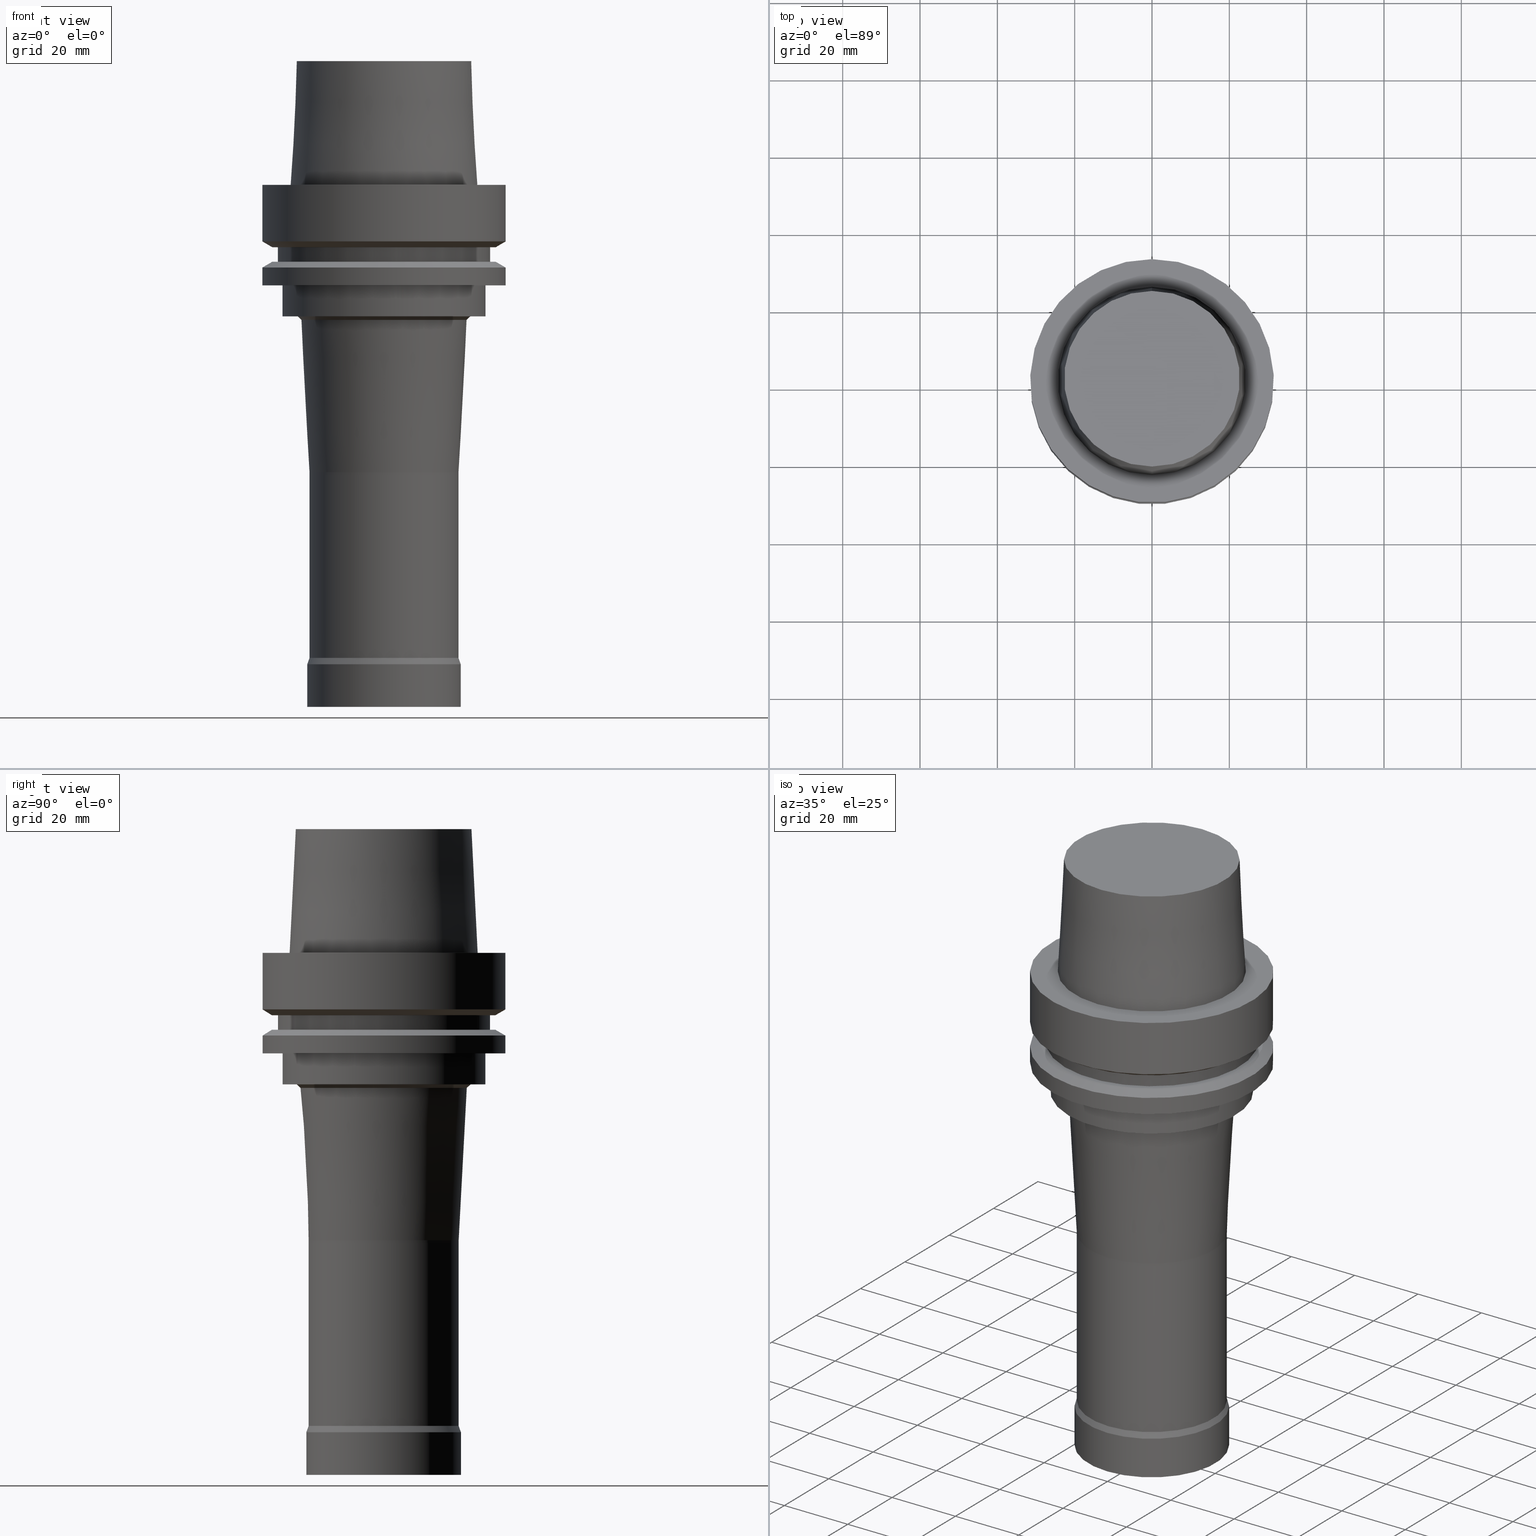
[diagram: canonical four-view strip — front | top / right | iso, engineering-drawing reading convention]
A machine part, canonical four-view strip (front | top / right | iso — engineering-drawing reading convention). The complete STEP part file that produces these views, byte-faithful:
ISO-10303-21;
HEADER;
FILE_DESCRIPTION((''),'1');
FILE_NAME('//Big_tech03/bigt/Translate/21_\X2\8F2A90ED7DDA\X0\-DXF/71_\X2\5207524A5DE55177\X0\/01_\X2\30A830F330C930DF30EB52A05DE5\X0\/01_\X2\30D530EB30AB30C330C830DF30EB\X0\ FCM/HSK/A 63/HSK-A63-FCM40114-135.stp','2012-05-30T06:35:36',(''),(''),'Spatial Interop R18','Kubotek KeyCreator V8.5.1 (14335)',' ');
FILE_SCHEMA(('CONFIG_CONTROL_DESIGN'));
ENDSEC;
DATA;
#1=DESIGN_CONTEXT('',#27,'design');
#2=APPLICATION_PROTOCOL_DEFINITION('INTERNATIONAL STANDARD','config_control_design',1994,#27);
#3=PRODUCT_CATEGORY_RELATIONSHIP('NONE','NONE',#28,#29);
#4=DATE_AND_TIME(#30,#31);
#5=DATE_TIME_ROLE('creation_date');
#6=DATE_TIME_ROLE('classification_date');
#7=PERSON_AND_ORGANIZATION_ROLE('creator');
#8=PERSON_AND_ORGANIZATION_ROLE('design_supplier');
#9=PERSON_AND_ORGANIZATION_ROLE('classification_officer');
#10=PERSON_AND_ORGANIZATION_ROLE('design_owner');
#11=APPROVAL_PERSON_ORGANIZATION(#32,#33,#34);
#12=APPROVAL_DATE_TIME(#4,#33);
#13=CC_DESIGN_APPROVAL(#33,(#35,#36,#37));
#14=CC_DESIGN_DATE_AND_TIME_ASSIGNMENT(#4,#5,(#37));
#15=CC_DESIGN_DATE_AND_TIME_ASSIGNMENT(#4,#6,(#35));
#16=CC_DESIGN_PERSON_AND_ORGANIZATION_ASSIGNMENT(#32,#10,(#38));
#17=CC_DESIGN_PERSON_AND_ORGANIZATION_ASSIGNMENT(#32,#7,(#37));
#18=CC_DESIGN_PERSON_AND_ORGANIZATION_ASSIGNMENT(#32,#7,(#36));
#19=CC_DESIGN_PERSON_AND_ORGANIZATION_ASSIGNMENT(#32,#8,(#36));
#20=CC_DESIGN_SECURITY_CLASSIFICATION(#35,(#36));
#21=CC_DESIGN_PERSON_AND_ORGANIZATION_ASSIGNMENT(#32,#9,(#35));
#22=SHAPE_DEFINITION_REPRESENTATION(#39,#40);
#23= (GEOMETRIC_REPRESENTATION_CONTEXT(3)GLOBAL_UNCERTAINTY_ASSIGNED_CONTEXT((#43))GLOBAL_UNIT_ASSIGNED_CONTEXT((#45,#46,#47))REPRESENTATION_CONTEXT('NONE','WORKSPACE'));
#27=APPLICATION_CONTEXT('CONFIGURATION CONTROLLED 3D DESIGNS OF MECHANICAL PARTS AND ASSEMBLIES');
#28=PRODUCT_CATEGORY('part','NONE');
#29=PRODUCT_RELATED_PRODUCT_CATEGORY('detail',' ',(#38));
#30=CALENDAR_DATE(2012,30,4);
#31=LOCAL_TIME(15,35,36.0,#49);
#32=PERSON_AND_ORGANIZATION(#50,#51);
#33=APPROVAL(#52,'SOLID MODEL');
#34=APPROVAL_ROLE('APPROVED');
#35=SECURITY_CLASSIFICATION('','',#53);
#36=PRODUCT_DEFINITION_FORMATION_WITH_SPECIFIED_SOURCE(' ','NONE',#38,.NOT_KNOWN.);
#37=PRODUCT_DEFINITION('NONE','NONE',#36,#1);
#38=PRODUCT('1','1','PART-1-DESC',(#54));
#39=PRODUCT_DEFINITION_SHAPE('NONE','NONE',#37);
#40=ADVANCED_BREP_SHAPE_REPRESENTATION('1',(#55,#56),#23);
#43=UNCERTAINTY_MEASURE_WITH_UNIT(LENGTH_MEASURE(1.0E-006),#45,'','');
#45= (CONVERSION_BASED_UNIT('MILLIMETRE',#59)LENGTH_UNIT()NAMED_UNIT(#62));
#46= (NAMED_UNIT(#64)PLANE_ANGLE_UNIT()SI_UNIT($,.RADIAN.));
#47= (NAMED_UNIT(#64)SOLID_ANGLE_UNIT()SI_UNIT($,.STERADIAN.));
#49=COORDINATED_UNIVERSAL_TIME_OFFSET(9,0,.AHEAD.);
#50=PERSON('','UNSPECIFIED',$,$,$,$);
#51=ORGANIZATION('UNSPECIFIED','UNSPECIFIED','UNSPECIFIED');
#52=APPROVAL_STATUS('approved');
#53=SECURITY_CLASSIFICATION_LEVEL('unclassified');
#54=MECHANICAL_CONTEXT('',#27,'mechanical');
#55=MANIFOLD_SOLID_BREP('1',#70);
#56=AXIS2_PLACEMENT_3D('',#71,#72,#73);
#59=LENGTH_MEASURE_WITH_UNIT(LENGTH_MEASURE(1.0),#74);
#62=DIMENSIONAL_EXPONENTS(1.0,0.0,0.0,0.0,0.0,0.0,0.0);
#64=DIMENSIONAL_EXPONENTS(0.0,0.0,0.0,0.0,0.0,0.0,0.0);
#70=CLOSED_SHELL('',(#75,#76,#77,#78,#79,#80,#81,#82,#83,#84,#85,#86,#87,#88,#89,#90,#91,#92,#93,#94));
#71=CARTESIAN_POINT('',(0.0,0.0,0.0));
#72=DIRECTION('',(0.0,0.0,1.0));
#73=DIRECTION('',(1.0,0.0,0.0));
#74= (NAMED_UNIT(#62)LENGTH_UNIT()SI_UNIT(.MILLI.,.METRE.));
#75=ADVANCED_FACE('',(#96,#97),#98,.T.);
#76=ADVANCED_FACE('',(#99,#100),#101,.T.);
#77=ADVANCED_FACE('',(#102,#103),#104,.T.);
#78=ADVANCED_FACE('',(#105,#106),#107,.T.);
#79=ADVANCED_FACE('',(#108,#109),#110,.T.);
#80=ADVANCED_FACE('',(#111,#112),#113,.T.);
#81=ADVANCED_FACE('',(#114,#115),#116,.T.);
#82=ADVANCED_FACE('',(#117,#118),#119,.T.);
#83=ADVANCED_FACE('',(#120,#121),#122,.T.);
#84=ADVANCED_FACE('',(#123,#124),#125,.T.);
#85=ADVANCED_FACE('',(#126,#127),#128,.T.);
#86=ADVANCED_FACE('',(#129,#130),#131,.T.);
#87=ADVANCED_FACE('',(#132,#133),#134,.T.);
#88=ADVANCED_FACE('',(#135,#136),#137,.T.);
#89=ADVANCED_FACE('',(#138,#139),#140,.T.);
#90=ADVANCED_FACE('',(#141,#142),#143,.T.);
#91=ADVANCED_FACE('',(#144,#145),#146,.T.);
#92=ADVANCED_FACE('',(#147),#148,.T.);
#93=ADVANCED_FACE('',(#149),#150,.T.);
#94=ADVANCED_FACE('',(#151,#152),#153,.T.);
#96=FACE_OUTER_BOUND('',#154,.T.);
#97=FACE_BOUND('',#155,.T.);
#98=PLANE('',#156);
#99=FACE_BOUND('',#157,.T.);
#100=FACE_BOUND('',#158,.T.);
#101=CYLINDRICAL_SURFACE('',#159,31.5);
#102=FACE_BOUND('',#160,.T.);
#103=FACE_BOUND('',#161,.T.);
#104=CONICAL_SURFACE('',#162,30.19879763,1.04719755326565);
#105=FACE_BOUND('',#163,.T.);
#106=FACE_OUTER_BOUND('',#164,.T.);
#107=PLANE('',#165);
#108=FACE_BOUND('',#166,.T.);
#109=FACE_BOUND('',#167,.T.);
#110=CYLINDRICAL_SURFACE('',#168,27.5);
#111=FACE_OUTER_BOUND('',#169,.T.);
#112=FACE_BOUND('',#170,.T.);
#113=PLANE('',#171);
#114=FACE_BOUND('',#172,.T.);
#115=FACE_BOUND('',#173,.T.);
#116=CONICAL_SURFACE('',#174,30.19879763,1.04719755326565);
#117=FACE_BOUND('',#175,.T.);
#118=FACE_BOUND('',#176,.T.);
#119=CYLINDRICAL_SURFACE('',#177,31.5);
#120=FACE_BOUND('',#178,.T.);
#121=FACE_OUTER_BOUND('',#179,.T.);
#122=PLANE('',#180);
#123=FACE_BOUND('',#181,.T.);
#124=FACE_BOUND('',#182,.T.);
#125=CYLINDRICAL_SURFACE('',#183,26.3);
#126=FACE_BOUND('',#184,.T.);
#127=FACE_OUTER_BOUND('',#185,.T.);
#128=PLANE('',#186);
#129=FACE_BOUND('',#187,.T.);
#130=FACE_BOUND('',#188,.T.);
#131=CONICAL_SURFACE('',#189,22.0021469010605,0.831749421593965);
#132=FACE_BOUND('',#190,.T.);
#133=FACE_BOUND('',#191,.T.);
#134=CONICAL_SURFACE('',#192,20.4545150443208,0.0532320022682217);
#135=FACE_BOUND('',#193,.T.);
#136=FACE_BOUND('',#194,.T.);
#137=CONICAL_SURFACE('',#195,19.4023681432603,0.00688212282532991);
#138=FACE_BOUND('',#196,.T.);
#139=FACE_BOUND('',#197,.T.);
#140=CYLINDRICAL_SURFACE('',#198,19.4);
#141=FACE_BOUND('',#199,.T.);
#142=FACE_BOUND('',#200,.T.);
#143=CONICAL_SURFACE('',#201,19.7,0.349471097158754);
#144=FACE_BOUND('',#202,.T.);
#145=FACE_BOUND('',#203,.T.);
#146=CYLINDRICAL_SURFACE('',#204,20.0);
#147=FACE_OUTER_BOUND('',#205,.T.);
#148=PLANE('',#206);
#149=FACE_OUTER_BOUND('',#207,.T.);
#150=PLANE('',#208);
#151=FACE_BOUND('',#209,.T.);
#152=FACE_BOUND('',#210,.T.);
#153=CONICAL_SURFACE('',#211,23.5149999985447,0.0499583958256321);
#154=EDGE_LOOP('',(#212));
#155=EDGE_LOOP('',(#213));
#156=AXIS2_PLACEMENT_3D('',#214,#215,#216);
#157=EDGE_LOOP('',(#217));
#158=EDGE_LOOP('',(#218));
#159=AXIS2_PLACEMENT_3D('',#219,#220,#221);
#160=EDGE_LOOP('',(#222));
#161=EDGE_LOOP('',(#223));
#162=AXIS2_PLACEMENT_3D('',#224,#225,#226);
#163=EDGE_LOOP('',(#227));
#164=EDGE_LOOP('',(#228));
#165=AXIS2_PLACEMENT_3D('',#229,#230,#231);
#166=EDGE_LOOP('',(#232));
#167=EDGE_LOOP('',(#233));
#168=AXIS2_PLACEMENT_3D('',#234,#235,#236);
#169=EDGE_LOOP('',(#237));
#170=EDGE_LOOP('',(#238));
#171=AXIS2_PLACEMENT_3D('',#239,#240,#241);
#172=EDGE_LOOP('',(#242));
#173=EDGE_LOOP('',(#243));
#174=AXIS2_PLACEMENT_3D('',#244,#245,#246);
#175=EDGE_LOOP('',(#247));
#176=EDGE_LOOP('',(#248));
#177=AXIS2_PLACEMENT_3D('',#249,#250,#251);
#178=EDGE_LOOP('',(#252));
#179=EDGE_LOOP('',(#253));
#180=AXIS2_PLACEMENT_3D('',#254,#255,#256);
#181=EDGE_LOOP('',(#257));
#182=EDGE_LOOP('',(#258));
#183=AXIS2_PLACEMENT_3D('',#259,#260,#261);
#184=EDGE_LOOP('',(#262));
#185=EDGE_LOOP('',(#263));
#186=AXIS2_PLACEMENT_3D('',#264,#265,#266);
#187=EDGE_LOOP('',(#267));
#188=EDGE_LOOP('',(#268));
#189=AXIS2_PLACEMENT_3D('',#269,#270,#271);
#190=EDGE_LOOP('',(#272));
#191=EDGE_LOOP('',(#273));
#192=AXIS2_PLACEMENT_3D('',#274,#275,#276);
#193=EDGE_LOOP('',(#277));
#194=EDGE_LOOP('',(#278));
#195=AXIS2_PLACEMENT_3D('',#279,#280,#281);
#196=EDGE_LOOP('',(#282));
#197=EDGE_LOOP('',(#283));
#198=AXIS2_PLACEMENT_3D('',#284,#285,#286);
#199=EDGE_LOOP('',(#287));
#200=EDGE_LOOP('',(#288));
#201=AXIS2_PLACEMENT_3D('',#289,#290,#291);
#202=EDGE_LOOP('',(#292));
#203=EDGE_LOOP('',(#293));
#204=AXIS2_PLACEMENT_3D('',#294,#295,#296);
#205=EDGE_LOOP('',(#297));
#206=AXIS2_PLACEMENT_3D('',#298,#299,#300);
#207=EDGE_LOOP('',(#301));
#208=AXIS2_PLACEMENT_3D('',#302,#303,#304);
#209=EDGE_LOOP('',(#305));
#210=EDGE_LOOP('',(#306));
#211=AXIS2_PLACEMENT_3D('',#307,#308,#309);
#212=ORIENTED_EDGE('',*,*,#310,.F.);
#213=ORIENTED_EDGE('',*,*,#311,.T.);
#214=CARTESIAN_POINT('',(-3.40924878510528E-031,27.907500000104,3.36768305473321E-015));
#215=DIRECTION('',(-6.12323399573677E-017,-1.08546795432774E-016,1.0));
#216=DIRECTION('',(1.14737270099915E-032,-1.0,-1.08546795432774E-016));
#217=ORIENTED_EDGE('',*,*,#312,.F.);
#218=ORIENTED_EDGE('',*,*,#310,.T.);
#219=CARTESIAN_POINT('',(4.47684973986342E-016,8.95369947972684E-016,-7.311250465));
#220=DIRECTION('',(-6.12323399573677E-017,-1.22464679914735E-016,1.0));
#221=DIRECTION('',(-1.23259516440783E-032,1.0,1.22464679914735E-016));
#222=ORIENTED_EDGE('',*,*,#313,.F.);
#223=ORIENTED_EDGE('',*,*,#312,.T.);
#224=CARTESIAN_POINT('',(9.41370714892619E-016,1.88274142978524E-015,-15.373750465));
#225=DIRECTION('',(-6.12323399573677E-017,-1.22464679914735E-016,1.0));
#226=DIRECTION('',(-1.23259516440783E-032,1.0,1.22464679914735E-016));
#227=ORIENTED_EDGE('',*,*,#314,.F.);
#228=ORIENTED_EDGE('',*,*,#313,.T.);
#229=CARTESIAN_POINT('',(9.87371481812553E-016,28.19879763,-16.125));
#230=DIRECTION('',(6.12323399573677E-017,1.22464679914735E-016,-1.0));
#231=DIRECTION('',(-1.23259516440783E-032,1.0,1.22464679914735E-016));
#232=ORIENTED_EDGE('',*,*,#315,.F.);
#233=ORIENTED_EDGE('',*,*,#314,.T.);
#234=CARTESIAN_POINT('',(1.10218211923262E-015,2.20436423846524E-015,-18.0));
#235=DIRECTION('',(-6.12323399573677E-017,-1.22464679914735E-016,1.0));
#236=DIRECTION('',(-1.23259516440783E-032,1.0,1.22464679914735E-016));
#237=ORIENTED_EDGE('',*,*,#316,.F.);
#238=ORIENTED_EDGE('',*,*,#315,.T.);
#239=CARTESIAN_POINT('',(1.21699275665268E-015,28.19879763,-19.875));
#240=DIRECTION('',(-6.12323399573677E-017,-1.22464679914735E-016,1.0));
#241=DIRECTION('',(1.23259516440783E-032,-1.0,-1.22464679914735E-016));
#242=ORIENTED_EDGE('',*,*,#317,.F.);
#243=ORIENTED_EDGE('',*,*,#316,.T.);
#244=CARTESIAN_POINT('',(1.26299352357262E-015,2.52598704714523E-015,-20.626249535));
#245=DIRECTION('',(6.12323399573677E-017,1.22464679914735E-016,-1.0));
#246=DIRECTION('',(-1.23259516440783E-032,1.0,1.22464679914735E-016));
#247=ORIENTED_EDGE('',*,*,#318,.F.);
#248=ORIENTED_EDGE('',*,*,#317,.T.);
#249=CARTESIAN_POINT('',(1.45051756469205E-015,2.90103512938411E-015,-23.688749535));
#250=DIRECTION('',(-6.12323399573677E-017,-1.22464679914735E-016,1.0));
#251=DIRECTION('',(-1.23259516440783E-032,1.0,1.22464679914735E-016));
#252=ORIENTED_EDGE('',*,*,#319,.F.);
#253=ORIENTED_EDGE('',*,*,#318,.T.);
#254=CARTESIAN_POINT('',(1.59204083889156E-015,28.9,-26.0));
#255=DIRECTION('',(6.12323399573677E-017,1.22464679914735E-016,-1.0));
#256=DIRECTION('',(-1.23259516440783E-032,1.0,1.22464679914735E-016));
#257=ORIENTED_EDGE('',*,*,#320,.F.);
#258=ORIENTED_EDGE('',*,*,#319,.T.);
#259=CARTESIAN_POINT('',(1.83697019872103E-015,3.67394039744206E-015,-30.0));
#260=DIRECTION('',(-6.12323399573677E-017,-1.22464679914735E-016,1.0));
#261=DIRECTION('',(-1.23259516440783E-032,1.0,1.22464679914735E-016));
#262=ORIENTED_EDGE('',*,*,#321,.F.);
#263=ORIENTED_EDGE('',*,*,#320,.T.);
#264=CARTESIAN_POINT('',(2.0818995585505E-015,24.4,-34.0));
#265=DIRECTION('',(6.12323399573677E-017,1.22464679914735E-016,-1.0));
#266=DIRECTION('',(-1.23259516440783E-032,1.0,1.22464679914735E-016));
#267=ORIENTED_EDGE('',*,*,#322,.F.);
#268=ORIENTED_EDGE('',*,*,#321,.T.);
#269=CARTESIAN_POINT('',(2.10968159590656E-015,4.21936319181311E-015,-34.4537151017812));
#270=DIRECTION('',(-6.12323399573677E-017,-1.22464679914735E-016,1.0));
#271=DIRECTION('',(-1.23259516440783E-032,1.0,1.22464679914735E-016));
#272=ORIENTED_EDGE('',*,*,#323,.F.);
#273=ORIENTED_EDGE('',*,*,#322,.T.);
#274=CARTESIAN_POINT('',(3.34387480683398E-015,6.68774961366795E-015,-54.6096198375256));
#275=DIRECTION('',(-6.12323399573677E-017,-1.22464679914735E-016,1.0));
#276=DIRECTION('',(-1.23259516440783E-032,1.0,1.22464679914735E-016));
#277=ORIENTED_EDGE('',*,*,#324,.F.);
#278=ORIENTED_EDGE('',*,*,#323,.T.);
#279=CARTESIAN_POINT('',(4.57135573860396E-015,9.14271147720791E-015,-74.6559047357444));
#280=DIRECTION('',(-6.12323399573677E-017,-1.22464679914735E-016,1.0));
#281=DIRECTION('',(-1.23259516440783E-032,1.0,1.22464679914735E-016));
#282=ORIENTED_EDGE('',*,*,#325,.F.);
#283=ORIENTED_EDGE('',*,*,#324,.T.);
#284=CARTESIAN_POINT('',(6.04221105183257E-015,1.20844221036651E-014,-98.67679491));
#285=DIRECTION('',(-6.12323399573677E-017,-1.22464679914735E-016,1.0));
#286=DIRECTION('',(-1.23259516440783E-032,1.0,1.22464679914735E-016));
#287=ORIENTED_EDGE('',*,*,#326,.F.);
#288=ORIENTED_EDGE('',*,*,#325,.T.);
#289=CARTESIAN_POINT('',(7.54240338078808E-015,1.50848067615761E-014,-123.17679491));
#290=DIRECTION('',(6.12323399573677E-017,1.22464679914735E-016,-1.0));
#291=DIRECTION('',(-1.23259516440783E-032,1.0,1.22464679914735E-016));
#292=ORIENTED_EDGE('',*,*,#327,.F.);
#293=ORIENTED_EDGE('',*,*,#326,.T.);
#294=CARTESIAN_POINT('',(7.92958802447911E-015,1.58591760489582E-014,-129.5));
#295=DIRECTION('',(-6.12323399573677E-017,-1.22464679914735E-016,1.0));
#296=DIRECTION('',(-1.23259516440783E-032,1.0,1.22464679914735E-016));
#297=ORIENTED_EDGE('',*,*,#327,.T.);
#298=CARTESIAN_POINT('',(8.26636589424463E-015,10.0,-135.0));
#299=DIRECTION('',(6.12323399573677E-017,1.22464679914735E-016,-1.0));
#300=DIRECTION('',(-1.23259516440783E-032,1.0,1.22464679914735E-016));
#301=ORIENTED_EDGE('',*,*,#328,.F.);
#302=CARTESIAN_POINT('',(-1.95943487863577E-015,11.3574999984407,32.0));
#303=DIRECTION('',(-6.12323399573677E-017,-1.22464679914735E-016,1.0));
#304=DIRECTION('',(1.23259516440783E-032,-1.0,-1.22464679914735E-016));
#305=ORIENTED_EDGE('',*,*,#311,.F.);
#306=ORIENTED_EDGE('',*,*,#328,.T.);
#307=CARTESIAN_POINT('',(-9.79717439317883E-016,-1.95943487863576E-015,16.0));
#308=DIRECTION('',(6.12323399573676E-017,1.22464679914735E-016,-1.0));
#309=DIRECTION('',(-1.23259516440783E-032,1.0,1.22464679914735E-016));
#310=EDGE_CURVE('',#329,#329,#330,.T.);
#311=EDGE_CURVE('',#331,#331,#332,.T.);
#312=EDGE_CURVE('',#333,#333,#334,.T.);
#313=EDGE_CURVE('',#335,#335,#336,.T.);
#314=EDGE_CURVE('',#337,#337,#338,.T.);
#315=EDGE_CURVE('',#339,#339,#340,.T.);
#316=EDGE_CURVE('',#341,#341,#342,.T.);
#317=EDGE_CURVE('',#343,#343,#344,.T.);
#318=EDGE_CURVE('',#345,#345,#346,.T.);
#319=EDGE_CURVE('',#347,#347,#348,.T.);
#320=EDGE_CURVE('',#349,#349,#350,.T.);
#321=EDGE_CURVE('',#351,#351,#352,.T.);
#322=EDGE_CURVE('',#353,#353,#354,.T.);
#323=EDGE_CURVE('',#355,#355,#356,.T.);
#324=EDGE_CURVE('',#357,#357,#358,.T.);
#325=EDGE_CURVE('',#359,#359,#360,.T.);
#326=EDGE_CURVE('',#361,#361,#362,.T.);
#327=EDGE_CURVE('',#363,#363,#364,.T.);
#328=EDGE_CURVE('',#365,#365,#366,.T.);
#329=VERTEX_POINT('',#367);
#330=CIRCLE('',#368,31.5);
#331=VERTEX_POINT('',#369);
#332=CIRCLE('',#370,24.3150000002079);
#333=VERTEX_POINT('',#371);
#334=CIRCLE('',#372,31.5);
#335=VERTEX_POINT('',#373);
#336=CIRCLE('',#374,28.89759526);
#337=VERTEX_POINT('',#375);
#338=CIRCLE('',#376,27.5);
#339=VERTEX_POINT('',#377);
#340=CIRCLE('',#378,27.5);
#341=VERTEX_POINT('',#379);
#342=CIRCLE('',#380,28.89759526);
#343=VERTEX_POINT('',#381);
#344=CIRCLE('',#382,31.5);
#345=VERTEX_POINT('',#383);
#346=CIRCLE('',#384,31.5);
#347=VERTEX_POINT('',#385);
#348=CIRCLE('',#386,26.3);
#349=VERTEX_POINT('',#387);
#350=CIRCLE('',#388,26.3);
#351=VERTEX_POINT('',#389);
#352=CIRCLE('',#390,22.5);
#353=VERTEX_POINT('',#391);
#354=CIRCLE('',#392,21.504293802121);
#355=VERTEX_POINT('',#393);
#356=CIRCLE('',#394,19.4047362865206);
#357=VERTEX_POINT('',#395);
#358=CIRCLE('',#396,19.4);
#359=VERTEX_POINT('',#397);
#360=CIRCLE('',#398,19.4);
#361=VERTEX_POINT('',#399);
#362=CIRCLE('',#400,20.0);
#363=VERTEX_POINT('',#401);
#364=CIRCLE('',#402,20.0);
#365=VERTEX_POINT('',#403);
#366=CIRCLE('',#404,22.7149999968815);
#367=CARTESIAN_POINT('',(-3.8214424279273E-031,31.5,3.75763741731416E-015));
#368=AXIS2_PLACEMENT_3D('',#405,#406,#407);
#369=CARTESIAN_POINT('',(-2.99705514228327E-031,24.3150000002079,2.97772869215225E-015));
#370=AXIS2_PLACEMENT_3D('',#408,#409,#410);
#371=CARTESIAN_POINT('',(8.95369947972684E-016,31.5,-14.62250093));
#372=AXIS2_PLACEMENT_3D('',#411,#412,#413);
#373=CARTESIAN_POINT('',(9.87371481812553E-016,28.89759526,-16.125));
#374=AXIS2_PLACEMENT_3D('',#414,#415,#416);
#375=CARTESIAN_POINT('',(9.87371481812553E-016,27.5,-16.125));
#376=AXIS2_PLACEMENT_3D('',#417,#418,#419);
#377=CARTESIAN_POINT('',(1.21699275665268E-015,27.5,-19.875));
#378=AXIS2_PLACEMENT_3D('',#420,#421,#422);
#379=CARTESIAN_POINT('',(1.21699275665268E-015,28.89759526,-19.875));
#380=AXIS2_PLACEMENT_3D('',#423,#424,#425);
#381=CARTESIAN_POINT('',(1.30899429049255E-015,31.5,-21.37749907));
#382=AXIS2_PLACEMENT_3D('',#426,#427,#428);
#383=CARTESIAN_POINT('',(1.59204083889156E-015,31.5,-26.0));
#384=AXIS2_PLACEMENT_3D('',#429,#430,#431);
#385=CARTESIAN_POINT('',(1.59204083889156E-015,26.3,-26.0));
#386=AXIS2_PLACEMENT_3D('',#432,#433,#434);
#387=CARTESIAN_POINT('',(2.0818995585505E-015,26.3,-34.0));
#388=AXIS2_PLACEMENT_3D('',#435,#436,#437);
#389=CARTESIAN_POINT('',(2.0818995585505E-015,22.5,-34.0));
#390=AXIS2_PLACEMENT_3D('',#438,#439,#440);
#391=CARTESIAN_POINT('',(2.13746363326261E-015,21.504293802121,-34.9074302035623));
#392=AXIS2_PLACEMENT_3D('',#441,#442,#443);
#393=CARTESIAN_POINT('',(4.55028598040534E-015,19.4047362865206,-74.3118094714888));
#394=AXIS2_PLACEMENT_3D('',#444,#445,#446);
#395=CARTESIAN_POINT('',(4.59242549680257E-015,19.4,-75.0));
#396=AXIS2_PLACEMENT_3D('',#447,#448,#449);
#397=CARTESIAN_POINT('',(7.49199660686256E-015,19.4,-122.35358982));
#398=AXIS2_PLACEMENT_3D('',#450,#451,#452);
#399=CARTESIAN_POINT('',(7.59281015471359E-015,20.0,-124.0));
#400=AXIS2_PLACEMENT_3D('',#453,#454,#455);
#401=CARTESIAN_POINT('',(8.26636589424463E-015,20.0,-135.0));
#402=AXIS2_PLACEMENT_3D('',#456,#457,#458);
#403=CARTESIAN_POINT('',(-1.95943487863577E-015,22.7149999968815,32.0));
#404=AXIS2_PLACEMENT_3D('',#459,#460,#461);
#405=CARTESIAN_POINT('',(0.0,0.0,0.0));
#406=DIRECTION('',(6.12323399573677E-017,1.22464679914735E-016,-1.0));
#407=DIRECTION('',(-1.23259516440783E-032,1.0,1.22464679914735E-016));
#408=CARTESIAN_POINT('',(0.0,0.0,0.0));
#409=DIRECTION('',(6.12323399573677E-017,1.22464679914735E-016,-1.0));
#410=DIRECTION('',(-1.23259516440783E-032,1.0,1.22464679914735E-016));
#411=CARTESIAN_POINT('',(8.95369947972685E-016,1.79073989594537E-015,-14.62250093));
#412=DIRECTION('',(6.12323399573677E-017,1.22464679914735E-016,-1.0));
#413=DIRECTION('',(-1.23259516440783E-032,1.0,1.22464679914735E-016));
#414=CARTESIAN_POINT('',(9.87371481812553E-016,1.97474296362511E-015,-16.125));
#415=DIRECTION('',(6.12323399573677E-017,1.22464679914735E-016,-1.0));
#416=DIRECTION('',(-1.23259516440783E-032,1.0,1.22464679914735E-016));
#417=CARTESIAN_POINT('',(9.87371481812553E-016,1.97474296362511E-015,-16.125));
#418=DIRECTION('',(6.12323399573677E-017,1.22464679914735E-016,-1.0));
#419=DIRECTION('',(-1.23259516440783E-032,1.0,1.22464679914735E-016));
#420=CARTESIAN_POINT('',(1.21699275665268E-015,2.43398551330536E-015,-19.875));
#421=DIRECTION('',(6.12323399573677E-017,1.22464679914735E-016,-1.0));
#422=DIRECTION('',(-1.23259516440783E-032,1.0,1.22464679914735E-016));
#423=CARTESIAN_POINT('',(1.21699275665268E-015,2.43398551330536E-015,-19.875));
#424=DIRECTION('',(6.12323399573677E-017,1.22464679914735E-016,-1.0));
#425=DIRECTION('',(-1.23259516440783E-032,1.0,1.22464679914735E-016));
#426=CARTESIAN_POINT('',(1.30899429049255E-015,2.6179885809851E-015,-21.37749907));
#427=DIRECTION('',(6.12323399573677E-017,1.22464679914735E-016,-1.0));
#428=DIRECTION('',(-1.23259516440783E-032,1.0,1.22464679914735E-016));
#429=CARTESIAN_POINT('',(1.59204083889156E-015,3.18408167778312E-015,-26.0));
#430=DIRECTION('',(6.12323399573677E-017,1.22464679914735E-016,-1.0));
#431=DIRECTION('',(-1.23259516440783E-032,1.0,1.22464679914735E-016));
#432=CARTESIAN_POINT('',(1.59204083889156E-015,3.18408167778312E-015,-26.0));
#433=DIRECTION('',(6.12323399573677E-017,1.22464679914735E-016,-1.0));
#434=DIRECTION('',(-1.23259516440783E-032,1.0,1.22464679914735E-016));
#435=CARTESIAN_POINT('',(2.0818995585505E-015,4.163799117101E-015,-34.0));
#436=DIRECTION('',(6.12323399573677E-017,1.22464679914735E-016,-1.0));
#437=DIRECTION('',(-1.23259516440783E-032,1.0,1.22464679914735E-016));
#438=CARTESIAN_POINT('',(2.0818995585505E-015,4.163799117101E-015,-34.0));
#439=DIRECTION('',(6.12323399573677E-017,1.22464679914735E-016,-1.0));
#440=DIRECTION('',(-1.23259516440783E-032,1.0,1.22464679914735E-016));
#441=CARTESIAN_POINT('',(2.13746363326261E-015,4.27492726652522E-015,-34.9074302035623));
#442=DIRECTION('',(6.12323399573677E-017,1.22464679914735E-016,-1.0));
#443=DIRECTION('',(-1.23259516440783E-032,1.0,1.22464679914735E-016));
#444=CARTESIAN_POINT('',(4.55028598040534E-015,9.10057196081068E-015,-74.3118094714888));
#445=DIRECTION('',(6.12323399573677E-017,1.22464679914735E-016,-1.0));
#446=DIRECTION('',(-1.23259516440783E-032,1.0,1.22464679914735E-016));
#447=CARTESIAN_POINT('',(4.59242549680257E-015,9.18485099360515E-015,-75.0));
#448=DIRECTION('',(6.12323399573677E-017,1.22464679914735E-016,-1.0));
#449=DIRECTION('',(-1.23259516440783E-032,1.0,1.22464679914735E-016));
#450=CARTESIAN_POINT('',(7.49199660686256E-015,1.49839932137251E-014,-122.35358982));
#451=DIRECTION('',(6.12323399573677E-017,1.22464679914735E-016,-1.0));
#452=DIRECTION('',(-1.23259516440783E-032,1.0,1.22464679914735E-016));
#453=CARTESIAN_POINT('',(7.59281015471359E-015,1.51856203094272E-014,-124.0));
#454=DIRECTION('',(6.12323399573677E-017,1.22464679914735E-016,-1.0));
#455=DIRECTION('',(-1.23259516440783E-032,1.0,1.22464679914735E-016));
#456=CARTESIAN_POINT('',(8.26636589424463E-015,1.65327317884893E-014,-135.0));
#457=DIRECTION('',(6.12323399573677E-017,1.22464679914735E-016,-1.0));
#458=DIRECTION('',(-1.23259516440783E-032,1.0,1.22464679914735E-016));
#459=CARTESIAN_POINT('',(-1.95943487863577E-015,-3.91886975727153E-015,32.0));
#460=DIRECTION('',(6.12323399573677E-017,1.22464679914735E-016,-1.0));
#461=DIRECTION('',(-1.23259516440783E-032,1.0,1.22464679914735E-016));
ENDSEC;
END-ISO-10303-21;
